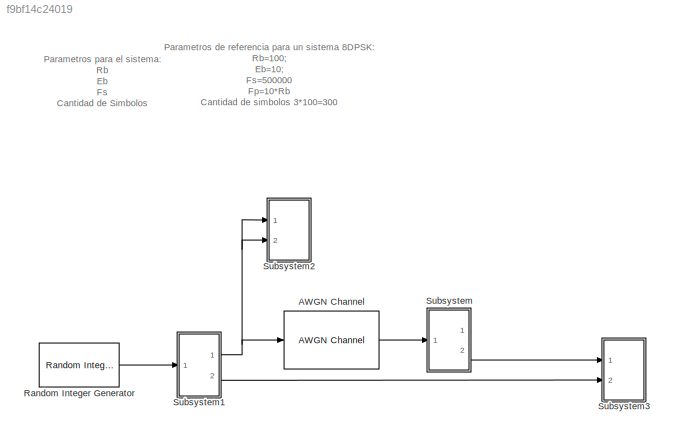
MODEL slx_f9bf14c24019
KIND model
CONFIG AbsTol = auto
CONFIG EnableMultiTasking = off
CONFIG FixedStep = auto
CONFIG MaxStep = auto
CONFIG MinStep = auto
CONFIG RelTol = 1e-3
CONFIG SampleTimeConstraint = Unconstrained
CONFIG Solver = FixedStepDiscrete
CONFIG SolverName = FixedStepDiscrete
CONFIG StartTime = 0.0
CONFIG StopTime = (1/Rb)*CantBit
BLOCK [Reference] AWGN Channel  REF=commchan3/AWGN
Channel
  Ports = [1, 1]
  SourceBlock = commchan3/AWGN\nChannel
  SourceProductBaseCode = CM
  SourceProductName = Communications System Toolbox
  SourceType = AWGN Channel
  UserDataPersistent = on
BLOCK [Reference] Random Integer Generator  REF=commrandsrc2/Random Integer
Generator
  Ports = [0, 1]
  SourceBlock = commrandsrc2/Random Integer\nGenerator
  SourceType = Random Integer Generator
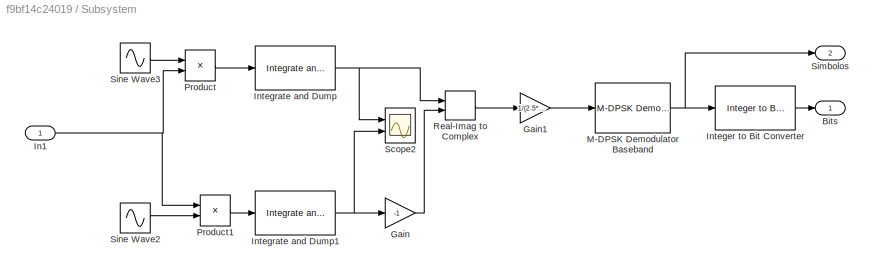
BLOCK [SubSystem] Subsystem
  Ports = [1, 2]
  RequestExecContextInheritance = off
BLOCK [Outport] Subsystem/Bits
  IconDisplay = Port number
BLOCK [Gain] Subsystem/Gain
  Gain = -1
  OutDataTypeStr = Inherit: Inherit via internal rule
  ParamDataTypeStr = Inherit: Inherit via internal rule
  SaturateOnIntegerOverflow = off
BLOCK [Gain] Subsystem/Gain1
  Gain = 1/(2.5*10^5)
  OutDataTypeStr = Inherit: Inherit via internal rule
  ParamDataTypeStr = Inherit: Inherit via internal rule
  SaturateOnIntegerOverflow = off
BLOCK [Inport] Subsystem/In1
  IconDisplay = Port number
BLOCK [Reference] Subsystem/Integer to Bit Converter  REF=commutil2/Integer to Bit
Converter
  Ports = [1, 1]
  SourceBlock = commutil2/Integer to Bit\nConverter
  SourceProductBaseCode = CM
  SourceProductName = Communications System Toolbox
  SourceType = Integer to Bit Converter
BLOCK [Reference] Subsystem/Integrate and Dump  REF=commfilt2/Integrate
and Dump
  Ports = [1, 1]
  SourceBlock = commfilt2/Integrate\nand Dump
  SourceProductBaseCode = CM
  SourceProductName = Communications Toolbox
  SourceType = Integrate and Dump
BLOCK [Reference] Subsystem/Integrate and Dump1  REF=commfilt2/Integrate
and Dump
  Ports = [1, 1]
  SourceBlock = commfilt2/Integrate\nand Dump
  SourceProductBaseCode = CM
  SourceProductName = Communications Toolbox
  SourceType = Integrate and Dump
BLOCK [Reference] Subsystem/M-DPSK Demodulator Baseband  REF=commdigbbndpm3/M-DPSK
Demodulator
Baseband
  Ports = [1, 1]
  SourceBlock = commdigbbndpm3/M-DPSK\nDemodulator\nBaseband
  SourceProductBaseCode = CM
  SourceProductName = Communications System Toolbox
  SourceType = M-DPSK Demodulator Baseband
BLOCK [Product] Subsystem/Product
  InputSameDT = off
  OutDataTypeStr = Inherit: Inherit via internal rule
  Ports = [2, 1]
  RndMeth = Floor
  SaturateOnIntegerOverflow = off
BLOCK [Product] Subsystem/Product1
  InputSameDT = off
  OutDataTypeStr = Inherit: Inherit via internal rule
  Ports = [2, 1]
  RndMeth = Floor
  SaturateOnIntegerOverflow = off
BLOCK [RealImagToComplex] Subsystem/Real-Imag to Complex
  Ports = [2, 1]
BLOCK [Scope] Subsystem/Scope2
  Floating = off
  NumInputPorts = 2
  Ports = [2]
  ScopeSpecificationString = Simulink.scopes.TimeScopeBlockCfg('CurrentConfiguration', extmgr.ConfigurationSet(extmgr.Configuration('Core','General UI',true),extmgr.Configuration('Core','Source UI',true),extmgr.Configuration('Sources','WiredSimulink',true,'DataLoggingVariableName','ScopeData2'),extmgr.Configuration('Visuals','Time Domain',true,'SerializedDisplays',{struct('MinYLimReal','-3423240.47992','MaxYLimReal','3423386....<+2981ch>
BLOCK [Outport] Subsystem/Simbolos
  IconDisplay = Port number
  Port = 2
BLOCK [Sin] Subsystem/Sine Wave2
  Amplitude = sqrt(2/(3/Rb))
  Frequency = 2*pi*Fp
  Ports = [0, 1]
  SampleTime = 1/Fs
BLOCK [Sin] Subsystem/Sine Wave3
  Amplitude = sqrt(2/(3/Rb))
  Frequency = 2*pi*Fp
  Phase = pi/2
  Ports = [0, 1]
  SampleTime = 1/Fs
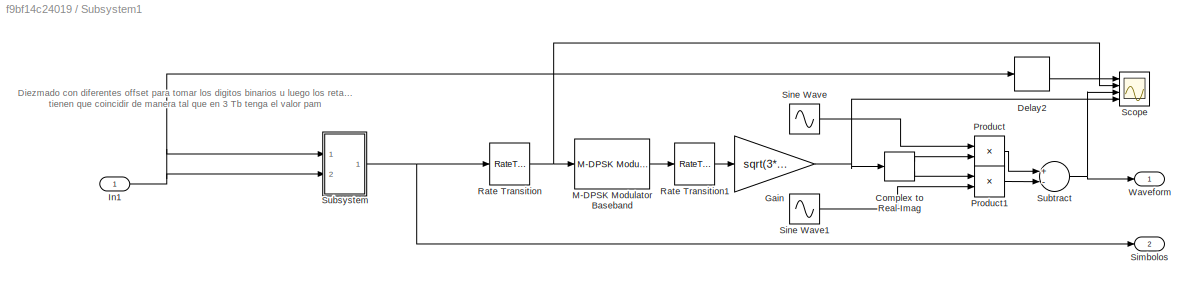
BLOCK [SubSystem] Subsystem1
  Ports = [1, 2]
  RequestExecContextInheritance = off
BLOCK [ComplexToRealImag] Subsystem1/Complex to Real-Imag
  Ports = [1, 2]
BLOCK [Delay] Subsystem1/Delay2
  DelayLength = 3
  InitialCondition = 0
  InputPortMap = u0
  Ports = [1, 1]
BLOCK [Gain] Subsystem1/Gain
  Gain = sqrt(3*Eb)
  OutDataTypeStr = Inherit: Inherit via internal rule
  ParamDataTypeStr = Inherit: Inherit via internal rule
  SaturateOnIntegerOverflow = off
BLOCK [Inport] Subsystem1/In1
  IconDisplay = Port number
BLOCK [Reference] Subsystem1/M-DPSK Modulator Baseband  REF=commdigbbndpm3/M-DPSK
Modulator
Baseband
  Ports = [1, 1]
  SourceBlock = commdigbbndpm3/M-DPSK\nModulator\nBaseband
  SourceProductBaseCode = CM
  SourceProductName = Communications System Toolbox
  SourceType = M-DPSK Modulator Baseband
BLOCK [Product] Subsystem1/Product
  InputSameDT = off
  OutDataTypeStr = Inherit: Inherit via internal rule
  Ports = [2, 1]
  RndMeth = Floor
  SaturateOnIntegerOverflow = off
BLOCK [Product] Subsystem1/Product1
  InputSameDT = off
  OutDataTypeStr = Inherit: Inherit via internal rule
  Ports = [2, 1]
  RndMeth = Floor
  SaturateOnIntegerOverflow = off
BLOCK [RateTransition] Subsystem1/Rate Transition
  OutPortSampleTime = (1/Rb)*3
BLOCK [RateTransition] Subsystem1/Rate Transition1
  OutPortSampleTime = 1/Fs
BLOCK [Scope] Subsystem1/Scope
  Floating = off
  NumInputPorts = 4
  Ports = [4]
  ScopeSpecificationString = Simulink.scopes.TimeScopeBlockCfg('CurrentConfiguration', extmgr.ConfigurationSet(extmgr.Configuration('Core','General UI',true),extmgr.Configuration('Core','Source UI',true),extmgr.Configuration('Sources','WiredSimulink',true,'DataLoggingSaveFormat','StructureWithTime','DataLoggingDecimation','1','DataLoggingDecimateData',true),extmgr.Configuration('Visuals','Time Domain',true,'SerializedDisplays...<+3653ch>
BLOCK [Outport] Subsystem1/Simbolos
  IconDisplay = Port number
  Port = 2
BLOCK [Sin] Subsystem1/Sine Wave
  Amplitude = sqrt(2/(3/Rb))
  Frequency = 2*pi*Fp
  Phase = pi/2
  Ports = [0, 1]
  SampleTime = 1/Fs
BLOCK [Sin] Subsystem1/Sine Wave1
  Amplitude = sqrt(2/(3/Rb))
  Frequency = 2*pi*Fp
  Ports = [0, 1]
  SampleTime = 1/Fs
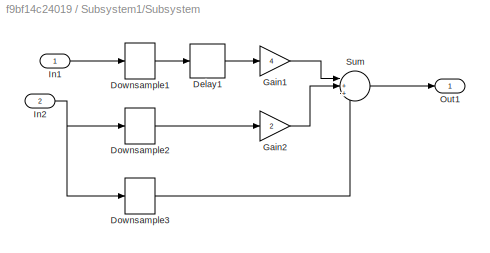
BLOCK [SubSystem] Subsystem1/Subsystem
  Ports = [2, 1]
  RequestExecContextInheritance = off
BLOCK [Delay] Subsystem1/Subsystem/Delay1
  DelayLength = 1
  InitialCondition = 0
  InputPortMap = u0
  Ports = [1, 1]
BLOCK [DownSample] Subsystem1/Subsystem/Downsample1
  InputProcessing = Elements as channels (sample based)
  N = 3
  RateOptions = Allow multirate processing
BLOCK [DownSample] Subsystem1/Subsystem/Downsample2
  InputProcessing = Elements as channels (sample based)
  N = 3
  RateOptions = Allow multirate processing
  phase = 1
BLOCK [DownSample] Subsystem1/Subsystem/Downsample3
  InputProcessing = Elements as channels (sample based)
  N = 3
  RateOptions = Allow multirate processing
  phase = 2
BLOCK [Gain] Subsystem1/Subsystem/Gain1
  Gain = 4
  OutDataTypeStr = Inherit: Inherit via internal rule
  ParamDataTypeStr = Inherit: Inherit via internal rule
  SaturateOnIntegerOverflow = off
BLOCK [Gain] Subsystem1/Subsystem/Gain2
  Gain = 2
  OutDataTypeStr = Inherit: Inherit via internal rule
  ParamDataTypeStr = Inherit: Inherit via internal rule
  SaturateOnIntegerOverflow = off
BLOCK [Inport] Subsystem1/Subsystem/In1
  IconDisplay = Port number
BLOCK [Inport] Subsystem1/Subsystem/In2
  IconDisplay = Port number
  Port = 2
BLOCK [Outport] Subsystem1/Subsystem/Out1
  IconDisplay = Port number
BLOCK [Sum] Subsystem1/Subsystem/Sum
  IconShape = round
  InputSameDT = off
  Inputs = |+++
  OutDataTypeStr = Inherit: Inherit via internal rule
  Ports = [3, 1]
  SaturateOnIntegerOverflow = off
BLOCK [Sum] Subsystem1/Subtract
  InputSameDT = off
  Inputs = +-
  OutDataTypeStr = Inherit: Inherit via internal rule
  Ports = [2, 1]
  SaturateOnIntegerOverflow = off
BLOCK [Outport] Subsystem1/Waveform
  IconDisplay = Port number
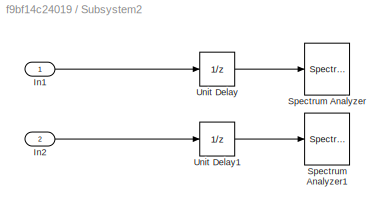
BLOCK [SubSystem] Subsystem2
  Ports = [2]
  RequestExecContextInheritance = off
BLOCK [Inport] Subsystem2/In1
  IconDisplay = Port number
BLOCK [Inport] Subsystem2/In2
  IconDisplay = Port number
  Port = 2
BLOCK [SpectrumAnalyzer] Subsystem2/Spectrum Analyzer
  Ports = [1]
  ScopeSpecificationString = spbscopes.SpectrumAnalyzerBlockCfg('CurrentConfiguration', extmgr.ConfigurationSet(extmgr.Configuration('Core','General UI',true),extmgr.Configuration('Core','Source UI',true),extmgr.Configuration('Sources','WiredSimulink',true),extmgr.Configuration('Sources','SimulinkEvent',false),extmgr.Configuration('Sources','Simulink',false),extmgr.Configuration('Sources','SPTool',false),extmgr.Configuration(...<+5276ch>
BLOCK [SpectrumAnalyzer] Subsystem2/Spectrum Analyzer1
  Ports = [1]
  ScopeSpecificationString = spbscopes.SpectrumAnalyzerBlockCfg('CurrentConfiguration', extmgr.ConfigurationSet(extmgr.Configuration('Core','General UI',true),extmgr.Configuration('Core','Source UI',true),extmgr.Configuration('Sources','WiredSimulink',true),extmgr.Configuration('Visuals','Spectrum',true,'AxesProperties',struct('Color',{[0 0 0],[0 0 0]},'XColor',{[0.686274509803922 0.686274509803922 0.686274509803922],[0.68627...<+3663ch>
BLOCK [UnitDelay] Subsystem2/Unit Delay
  InputProcessing = Elements as channels (sample based)
  SampleTime = 1/Fs
BLOCK [UnitDelay] Subsystem2/Unit Delay1
  InputProcessing = Elements as channels (sample based)
  SampleTime = 1/Fs
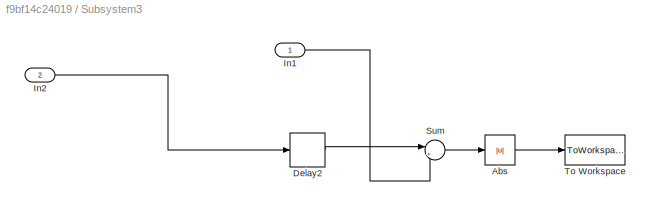
BLOCK [SubSystem] Subsystem3
  Ports = [2]
  RequestExecContextInheritance = off
BLOCK [Abs] Subsystem3/Abs
  SaturateOnIntegerOverflow = off
BLOCK [Delay] Subsystem3/Delay2
  InitialCondition = 0
  InputPortMap = u0
  Ports = [1, 1]
BLOCK [Inport] Subsystem3/In1
  IconDisplay = Port number
BLOCK [Inport] Subsystem3/In2
  IconDisplay = Port number
  Port = 2
BLOCK [Sum] Subsystem3/Sum
  IconShape = round
  InputSameDT = off
  Inputs = |+-
  OutDataTypeStr = Inherit: Inherit via internal rule
  Ports = [2, 1]
  SaturateOnIntegerOverflow = off
BLOCK [ToWorkspace] Subsystem3/To Workspace
  FixptAsFi = on
  MaxDataPoints = inf
  Ports = [1]
  SampleTime = 1/Rs
  Save2DSignal = 2-D array (concatenate along first dimension)
  VariableName = Err
ANNOTATION (root): Parametros de referencia para un sistema 8DPSK: Rb=100; Eb=10; Fs=500000 Fp=10*Rb Cantidad de simbolos 3*100=300
ANNOTATION (root): Parametros para el sistema: Rb Eb Fs Cantidad de Simbolos
ANNOTATION Subsystem1: Diezmado con diferentes offset para tomar los digitos binarios u luego los retardos tienen que coincidir de manera tal que en 3 Tb tenga el valor pam
LINE AWGN Channel:1 -> Subsystem:1
LINE Random Integer Generator:1 -> Subsystem1:1
LINE Subsystem/Gain1:1 -> Subsystem/M-DPSK Demodulator Baseband:1
LINE Subsystem/Gain:1 -> Subsystem/Real-Imag to Complex:2
NET Subsystem/In1:1 -> Subsystem/Product1:1, Subsystem/Product:2
LINE Subsystem/Integer to Bit Converter:1 -> Subsystem/Bits:1
NET Subsystem/Integrate and Dump1:1 -> Subsystem/Gain:1, Subsystem/Scope2:2
NET Subsystem/Integrate and Dump:1 -> Subsystem/Real-Imag to Complex:1, Subsystem/Scope2:1
NET Subsystem/M-DPSK Demodulator Baseband:1 -> Subsystem/Integer to Bit Converter:1, Subsystem/Simbolos:1
LINE Subsystem/Product1:1 -> Subsystem/Integrate and Dump1:1
LINE Subsystem/Product:1 -> Subsystem/Integrate and Dump:1
LINE Subsystem/Real-Imag to Complex:1 -> Subsystem/Gain1:1
LINE Subsystem/Sine Wave2:1 -> Subsystem/Product1:2
LINE Subsystem/Sine Wave3:1 -> Subsystem/Product:1
LINE Subsystem1/Complex to Real-Imag:1 -> Subsystem1/Product:2
LINE Subsystem1/Complex to Real-Imag:2 -> Subsystem1/Product1:1
LINE Subsystem1/Delay2:1 -> Subsystem1/Scope:1
NET Subsystem1/Gain:1 -> Subsystem1/Complex to Real-Imag:1, Subsystem1/Scope:4
NET Subsystem1/In1:1 -> Subsystem1/Delay2:1, Subsystem1/Subsystem:1, Subsystem1/Subsystem:2
LINE Subsystem1/M-DPSK Modulator Baseband:1 -> Subsystem1/Rate Transition1:1
LINE Subsystem1/Product1:1 -> Subsystem1/Subtract:2
LINE Subsystem1/Product:1 -> Subsystem1/Subtract:1
LINE Subsystem1/Rate Transition1:1 -> Subsystem1/Gain:1
NET Subsystem1/Rate Transition:1 -> Subsystem1/M-DPSK Modulator Baseband:1, Subsystem1/Scope:2
LINE Subsystem1/Sine Wave1:1 -> Subsystem1/Product1:2
LINE Subsystem1/Sine Wave:1 -> Subsystem1/Product:1
LINE Subsystem1/Subsystem/Delay1:1 -> Subsystem1/Subsystem/Gain1:1
LINE Subsystem1/Subsystem/Downsample1:1 -> Subsystem1/Subsystem/Delay1:1
LINE Subsystem1/Subsystem/Downsample2:1 -> Subsystem1/Subsystem/Gain2:1
LINE Subsystem1/Subsystem/Downsample3:1 -> Subsystem1/Subsystem/Sum:3
LINE Subsystem1/Subsystem/Gain1:1 -> Subsystem1/Subsystem/Sum:1
LINE Subsystem1/Subsystem/Gain2:1 -> Subsystem1/Subsystem/Sum:2
LINE Subsystem1/Subsystem/In1:1 -> Subsystem1/Subsystem/Downsample1:1
NET Subsystem1/Subsystem/In2:1 -> Subsystem1/Subsystem/Downsample2:1, Subsystem1/Subsystem/Downsample3:1
LINE Subsystem1/Subsystem/Sum:1 -> Subsystem1/Subsystem/Out1:1
NET Subsystem1/Subsystem:1 -> Subsystem1/Rate Transition:1, Subsystem1/Simbolos:1
NET Subsystem1/Subtract:1 -> Subsystem1/Scope:3, Subsystem1/Waveform:1
NET Subsystem1:1 -> AWGN Channel:1, Subsystem2:1, Subsystem2:2
LINE Subsystem1:2 -> Subsystem3:2
LINE Subsystem2/In1:1 -> Subsystem2/Unit Delay:1
LINE Subsystem2/In2:1 -> Subsystem2/Unit Delay1:1
LINE Subsystem2/Unit Delay1:1 -> Subsystem2/Spectrum Analyzer1:1
LINE Subsystem2/Unit Delay:1 -> Subsystem2/Spectrum Analyzer:1
LINE Subsystem3/Abs:1 -> Subsystem3/To Workspace:1
LINE Subsystem3/Delay2:1 -> Subsystem3/Sum:1
LINE Subsystem3/In1:1 -> Subsystem3/Sum:2
LINE Subsystem3/In2:1 -> Subsystem3/Delay2:1
LINE Subsystem3/Sum:1 -> Subsystem3/Abs:1
LINE Subsystem:2 -> Subsystem3:1
note: NET lines group one-source signal fan-out (src -> all destinations, sorted); 1:1 wires keep LINE
